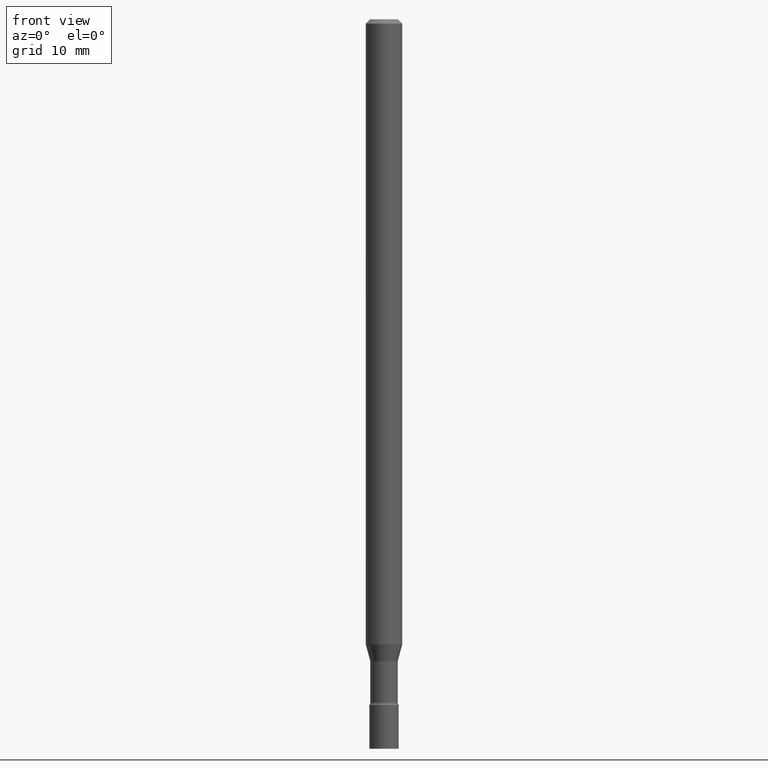
[diagram: clean part render]
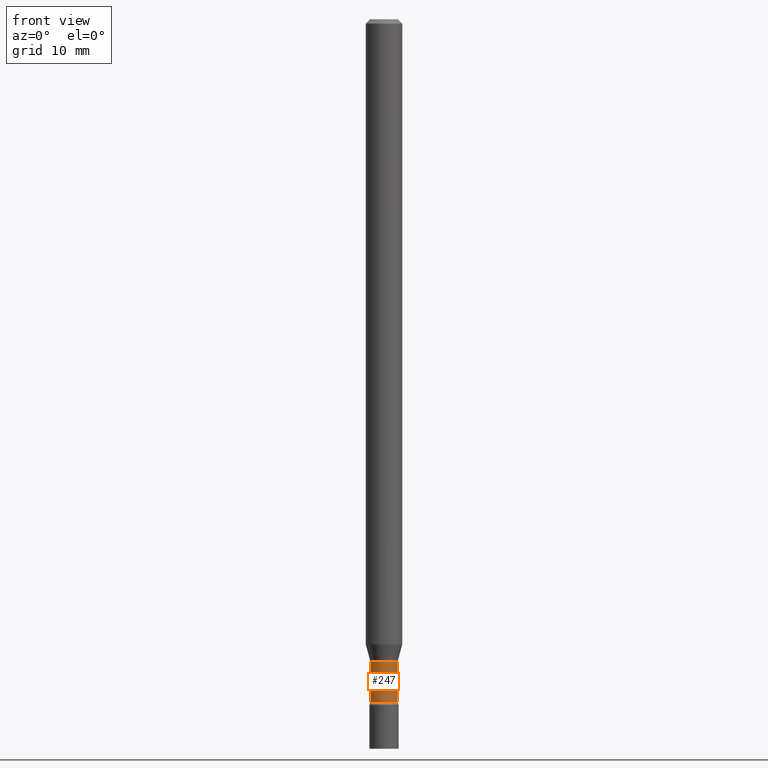
[diagram: same view with one face highlighted and labeled with its STEP entity id]
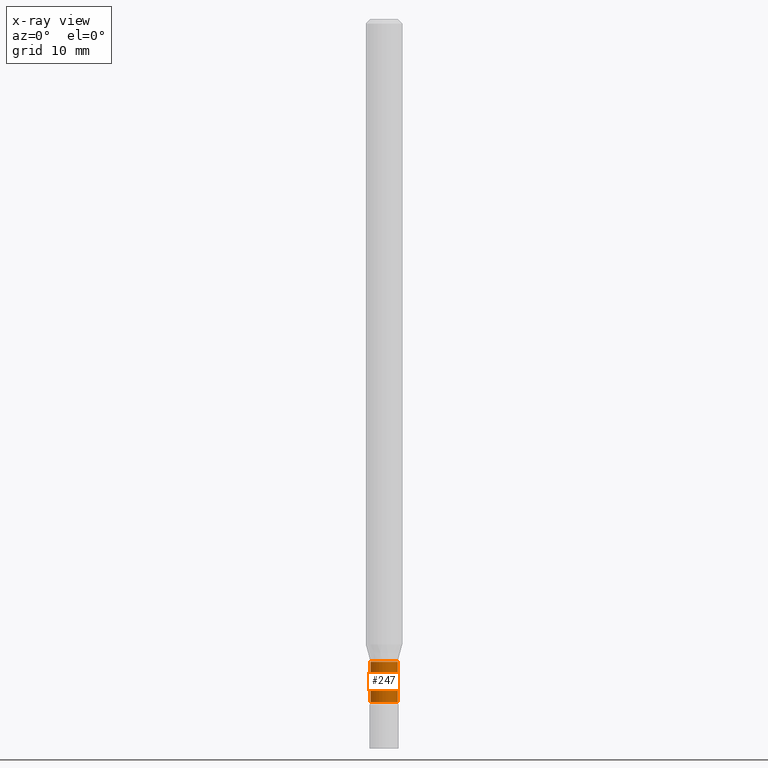
[diagram: x-ray of the same camera — body ghosted, the highlighted face saturated]
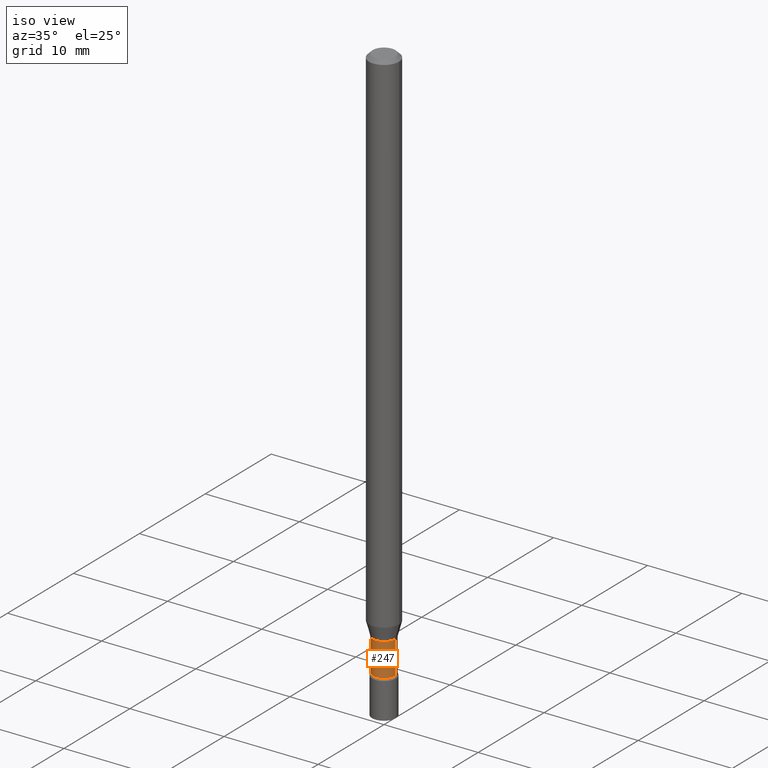
[diagram: same view with one face highlighted and labeled with its STEP entity id]
A machine part, front view. The second image highlights one B-rep face of the part: STEP entity #247.
The next image is the same camera in x-ray: the body ghosted, the highlighted face saturated — about 0% of this face is hidden behind the body in this view.
A second angle (iso view) of the same face is appended — the face is thin or edge-on in the first view.
In plain terms, the highlighted cylindrical surface (edge-blend (fillet) strip) has radius 1.1938 mm, axis along (-0, 0, 1).
Its self-contained STEP definition (entity closure, byte-faithful):
#6 = VECTOR ( 'NONE', #365, 39.37007874015748143 ) ;
#12 = DIRECTION ( 'NONE',  ( 1.000000000000000000, -6.982962677686273021E-15, 0.000000000000000000 ) ) ;
#39 = DIRECTION ( 'NONE',  ( -2.445468806185136597E-29, 3.491481338843145583E-15, 1.000000000000000000 ) ) ;
#74 = CARTESIAN_POINT ( 'NONE',  ( 0.04700000000000000705, -8.016353124884251642E-15, -2.201974787463810923 ) ) ;
#78 = VECTOR ( 'NONE', #390, 39.37007874015748143 ) ;
#91 = ORIENTED_EDGE ( 'NONE', *, *, #134, .T. ) ;
#97 = DIRECTION ( 'NONE',  ( -2.445468806185136597E-29, 3.491481338843145583E-15, 1.000000000000000000 ) ) ;
#107 = EDGE_CURVE ( 'NONE', #449, #286, #438, .T. ) ;
#119 = DIRECTION ( 'NONE',  ( -2.445468806185136597E-29, 3.491481338843145583E-15, 1.000000000000000000 ) ) ;
#129 = CIRCLE ( 'NONE', #421, 0.04700000000000000705 ) ;
#131 = CARTESIAN_POINT ( 'NONE',  ( -0.04699999999999998623, -7.844656253412948961E-15, -2.341000000000000192 ) ) ;
#134 = EDGE_CURVE ( 'NONE', #286, #216, #140, .T. ) ;
#140 = LINE ( 'NONE', #258, #78 ) ;
#153 = FACE_OUTER_BOUND ( 'NONE', #300, .T. ) ;
#169 = DIRECTION ( 'NONE',  ( 1.000000000000000000, -6.982962677686269866E-15, 0.000000000000000000 ) ) ;
#172 = ORIENTED_EDGE ( 'NONE', *, *, #316, .F. ) ;
#209 = AXIS2_PLACEMENT_3D ( 'NONE', #303, #97, #12 ) ;
#216 = VERTEX_POINT ( 'NONE', #74 ) ;
#230 = CARTESIAN_POINT ( 'NONE',  ( -0.04699999999999999317, 3.339550858072470388E-16, -2.311899492419805370E-30 ) ) ;
#232 = CYLINDRICAL_SURFACE ( 'NONE', #250, 0.04699999999999999317 ) ;
#246 = CARTESIAN_POINT ( 'NONE',  ( 5.384860654748895550E-29, -7.688153879032997927E-15, -2.201974787463810923 ) ) ;
#247 = ADVANCED_FACE ( 'NONE', ( #153 ), #232, .T. ) ;
#250 = AXIS2_PLACEMENT_3D ( 'NONE', #435, #119, #509 ) ;
#258 = CARTESIAN_POINT ( 'NONE',  ( 0.04699999999999999317, -3.281992458512545038E-16, 2.291803084624089879E-30 ) ) ;
#273 = CARTESIAN_POINT ( 'NONE',  ( 0.04699999999999998623, -8.501757060083058435E-15, -2.341000000000000192 ) ) ;
#286 = VERTEX_POINT ( 'NONE', #273 ) ;
#300 = EDGE_LOOP ( 'NONE', ( #172, #378, #91, #499 ) ) ;
#303 = CARTESIAN_POINT ( 'NONE',  ( 5.724842475279404612E-29, -8.173557814231803142E-15, -2.341000000000000192 ) ) ;
#316 = EDGE_CURVE ( 'NONE', #449, #393, #364, .T. ) ;
#364 = LINE ( 'NONE', #230, #6 ) ;
#365 = DIRECTION ( 'NONE',  ( -2.445468806185136877E-29, 3.491481338843145188E-15, 1.000000000000000000 ) ) ;
#371 = CARTESIAN_POINT ( 'NONE',  ( -0.04700000000000000705, -7.596900760825153150E-15, -2.201974787463810923 ) ) ;
#378 = ORIENTED_EDGE ( 'NONE', *, *, #107, .T. ) ;
#390 = DIRECTION ( 'NONE',  ( -2.445468806185136877E-29, 3.491481338843145188E-15, 1.000000000000000000 ) ) ;
#393 = VERTEX_POINT ( 'NONE', #371 ) ;
#421 = AXIS2_PLACEMENT_3D ( 'NONE', #246, #39, #169 ) ;
#423 = EDGE_CURVE ( 'NONE', #393, #216, #129, .T. ) ;
#435 = CARTESIAN_POINT ( 'NONE',  ( 0.000000000000000000, 0.000000000000000000, 0.000000000000000000 ) ) ;
#438 = CIRCLE ( 'NONE', #209, 0.04699999999999998623 ) ;
#449 = VERTEX_POINT ( 'NONE', #131 ) ;
#499 = ORIENTED_EDGE ( 'NONE', *, *, #423, .F. ) ;
#509 = DIRECTION ( 'NONE',  ( 1.000000000000000000, -6.982962677686266711E-15, 4.876176775795936353E-29 ) ) ;